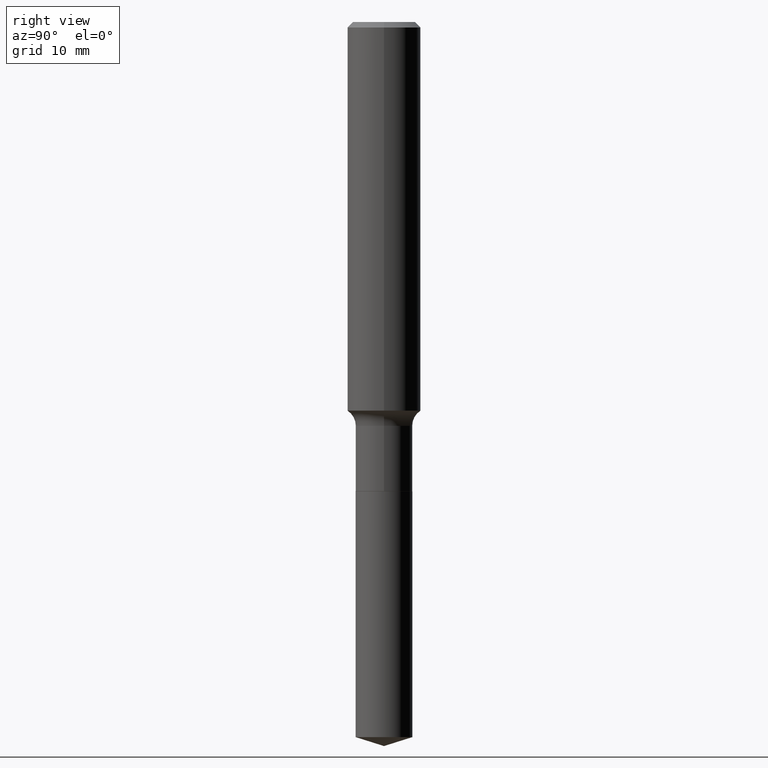
[diagram: clean part render]
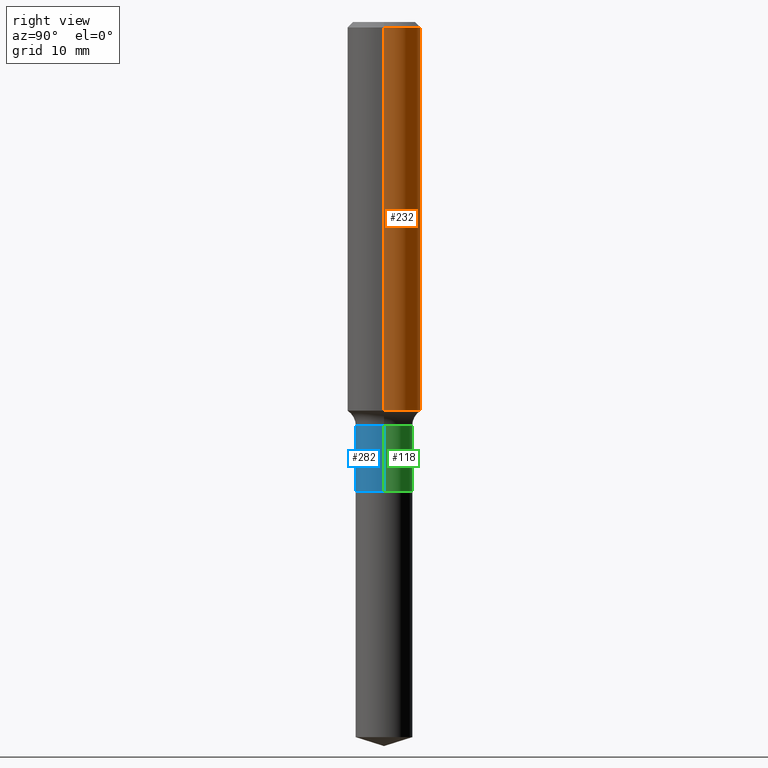
[diagram: same view with three faces highlighted in distinct colors, each labeled with its STEP entity id]
A machine part, right view with three faces highlighted in distinct colors.
Their STEP definitions:

[orange] entity #232 — the highlighted cylindrical surface (partial cylindrical patch) has radius 4.0005 mm, axis along (-0, 0, 1).
#6 = ORIENTED_EDGE ( 'NONE', *, *, #69, .F. ) ;
#7 = DIRECTION ( 'NONE',  ( 1.000000000000000000, -6.982962677686265922E-15, 0.000000000000000000 ) ) ;
#24 = CARTESIAN_POINT ( 'NONE',  ( 5.777420054612421980E-31, -8.248624663016985234E-17, -0.02362500000000015282 ) ) ;
#31 = AXIS2_PLACEMENT_3D ( 'NONE', #358, #412, #7 ) ;
#38 = CARTESIAN_POINT ( 'NONE',  ( 0.1575000000000000011, -1.182302868365756679E-15, -0.02362500000000015282 ) ) ;
#39 = EDGE_CURVE ( 'NONE', #399, #292, #101, .T. ) ;
#55 = VERTEX_POINT ( 'NONE', #405 ) ;
#61 = FACE_OUTER_BOUND ( 'NONE', #250, .T. ) ;
#69 = EDGE_CURVE ( 'NONE', #292, #423, #102, .T. ) ;
#75 = AXIS2_PLACEMENT_3D ( 'NONE', #270, #154, #451 ) ;
#101 = LINE ( 'NONE', #249, #410 ) ;
#102 = CIRCLE ( 'NONE', #383, 0.1575000000000000011 ) ;
#110 = CIRCLE ( 'NONE', #31, 0.1575000000000001954 ) ;
#154 = DIRECTION ( 'NONE',  ( -2.445468806185136597E-29, 3.491481338843145583E-15, 1.000000000000000000 ) ) ;
#204 = ORIENTED_EDGE ( 'NONE', *, *, #39, .F. ) ;
#211 = ORIENTED_EDGE ( 'NONE', *, *, #449, .T. ) ;
#232 = ADVANCED_FACE ( 'NONE', ( #61 ), #304, .T. ) ;
#233 = DIRECTION ( 'NONE',  ( -2.445468806185136877E-29, 3.491481338843145188E-15, 1.000000000000000000 ) ) ;
#249 = CARTESIAN_POINT ( 'NONE',  ( 0.1575000000000000844, -1.099816621735587677E-15, 7.679978421878603638E-30 ) ) ;
#250 = EDGE_LOOP ( 'NONE', ( #211, #299, #6, #204 ) ) ;
#258 = DIRECTION ( 'NONE',  ( -2.445468806185136597E-29, 3.491481338843145583E-15, 1.000000000000000000 ) ) ;
#270 = CARTESIAN_POINT ( 'NONE',  ( 0.000000000000000000, 0.000000000000000000, 0.000000000000000000 ) ) ;
#276 = LINE ( 'NONE', #454, #453 ) ;
#286 = EDGE_CURVE ( 'NONE', #55, #423, #276, .T. ) ;
#292 = VERTEX_POINT ( 'NONE', #38 ) ;
#299 = ORIENTED_EDGE ( 'NONE', *, *, #286, .T. ) ;
#304 = CYLINDRICAL_SURFACE ( 'NONE', #75, 0.1575000000000000844 ) ;
#313 = CARTESIAN_POINT ( 'NONE',  ( -0.1575000000000000011, -1.836875828701412226E-15, -0.02362500000000015282 ) ) ;
#339 = DIRECTION ( 'NONE',  ( 1.000000000000000000, -6.982962677686265922E-15, 0.000000000000000000 ) ) ;
#358 = CARTESIAN_POINT ( 'NONE',  ( 4.083023208467837425E-29, -5.829475028416973418E-15, -1.669628006761304961 ) ) ;
#383 = AXIS2_PLACEMENT_3D ( 'NONE', #24, #258, #339 ) ;
#396 = DIRECTION ( 'NONE',  ( -2.445468806185136877E-29, 3.491481338843145188E-15, 1.000000000000000000 ) ) ;
#399 = VERTEX_POINT ( 'NONE', #483 ) ;
#405 = CARTESIAN_POINT ( 'NONE',  ( -0.1575000000000002232, -4.710370219594814237E-15, -1.669628006761304961 ) ) ;
#410 = VECTOR ( 'NONE', #396, 39.37007874015748143 ) ;
#412 = DIRECTION ( 'NONE',  ( -2.445468806185136597E-29, 3.491481338843145583E-15, 1.000000000000000000 ) ) ;
#423 = VERTEX_POINT ( 'NONE', #313 ) ;
#449 = EDGE_CURVE ( 'NONE', #399, #55, #110, .T. ) ;
#451 = DIRECTION ( 'NONE',  ( 1.000000000000000000, -6.982962677686267499E-15, 4.876176775795936353E-29 ) ) ;
#453 = VECTOR ( 'NONE', #233, 39.37007874015748143 ) ;
#454 = CARTESIAN_POINT ( 'NONE',  ( -0.1575000000000000844, 1.119104808822158392E-15, -7.747322767151481189E-30 ) ) ;
#483 = CARTESIAN_POINT ( 'NONE',  ( 0.1575000000000002232, -6.929291650152562476E-15, -1.669628006761304961 ) ) ;

[blue] entity #282 — the highlighted cylindrical surface (edge-blend (fillet) strip) has radius 3.1001 mm, axis along (-0, 0, 1).
#5 = EDGE_CURVE ( 'NONE', #138, #92, #210, .T. ) ;
#12 = ORIENTED_EDGE ( 'NONE', *, *, #340, .F. ) ;
#34 = CYLINDRICAL_SURFACE ( 'NONE', #479, 0.1220499999999999641 ) ;
#64 = DIRECTION ( 'NONE',  ( 1.000000000000000000, -6.982962677686265922E-15, 0.000000000000000000 ) ) ;
#92 = VERTEX_POINT ( 'NONE', #476 ) ;
#103 = AXIS2_PLACEMENT_3D ( 'NONE', #360, #201, #463 ) ;
#115 = CARTESIAN_POINT ( 'NONE',  ( 0.1220499999999999641, -6.909990717704466794E-15, -1.735000000000000098 ) ) ;
#134 = CIRCLE ( 'NONE', #103, 0.1220499999999999780 ) ;
#138 = VERTEX_POINT ( 'NONE', #271 ) ;
#142 = VECTOR ( 'NONE', #175, 39.37007874015748143 ) ;
#175 = DIRECTION ( 'NONE',  ( -2.445468806185136877E-29, 3.491481338843145188E-15, 1.000000000000000000 ) ) ;
#187 = DIRECTION ( 'NONE',  ( -2.445468806185136877E-29, 3.491481338843145188E-15, 1.000000000000000000 ) ) ;
#188 = EDGE_CURVE ( 'NONE', #138, #289, #134, .T. ) ;
#201 = DIRECTION ( 'NONE',  ( -2.445468806185136597E-29, 3.491481338843145583E-15, 1.000000000000000000 ) ) ;
#210 = LINE ( 'NONE', #338, #142 ) ;
#229 = DIRECTION ( 'NONE',  ( 1.000000000000000000, -6.982962677686266711E-15, 4.876176775795935793E-29 ) ) ;
#235 = AXIS2_PLACEMENT_3D ( 'NONE', #238, #474, #64 ) ;
#238 = CARTESIAN_POINT ( 'NONE',  ( 4.242888378731212847E-29, -6.057720122892857986E-15, -1.735000000000000098 ) ) ;
#248 = ORIENTED_EDGE ( 'NONE', *, *, #316, .T. ) ;
#253 = VERTEX_POINT ( 'NONE', #115 ) ;
#271 = CARTESIAN_POINT ( 'NONE',  ( -0.1220500000000000057, -5.679659249469580789E-15, -2.015200000000000102 ) ) ;
#273 = CIRCLE ( 'NONE', #235, 0.1220499999999999641 ) ;
#282 = ADVANCED_FACE ( 'NONE', ( #320 ), #34, .T. ) ;
#289 = VERTEX_POINT ( 'NONE', #492 ) ;
#300 = ORIENTED_EDGE ( 'NONE', *, *, #188, .T. ) ;
#316 = EDGE_CURVE ( 'NONE', #289, #253, #447, .T. ) ;
#317 = CARTESIAN_POINT ( 'NONE',  ( 0.1220499999999999641, -8.522705948116086106E-16, 5.951373754858937892E-30 ) ) ;
#320 = FACE_OUTER_BOUND ( 'NONE', #334, .T. ) ;
#325 = VECTOR ( 'NONE', #187, 39.37007874015748143 ) ;
#334 = EDGE_LOOP ( 'NONE', ( #481, #300, #248, #12 ) ) ;
#338 = CARTESIAN_POINT ( 'NONE',  ( -0.1220499999999999641, 8.672174089952020216E-16, -6.003560277656110794E-30 ) ) ;
#340 = EDGE_CURVE ( 'NONE', #92, #253, #273, .T. ) ;
#345 = DIRECTION ( 'NONE',  ( -2.445468806185136597E-29, 3.491481338843145583E-15, 1.000000000000000000 ) ) ;
#360 = CARTESIAN_POINT ( 'NONE',  ( 4.928108738224288081E-29, -7.036033194036707240E-15, -2.015200000000000102 ) ) ;
#419 = CARTESIAN_POINT ( 'NONE',  ( 0.000000000000000000, 0.000000000000000000, 0.000000000000000000 ) ) ;
#447 = LINE ( 'NONE', #317, #325 ) ;
#463 = DIRECTION ( 'NONE',  ( 1.000000000000000000, -6.982962677686265133E-15, 0.000000000000000000 ) ) ;
#474 = DIRECTION ( 'NONE',  ( -2.445468806185136597E-29, 3.491481338843145583E-15, 1.000000000000000000 ) ) ;
#476 = CARTESIAN_POINT ( 'NONE',  ( -0.1220499999999999641, -5.679659249469580789E-15, -1.735000000000000098 ) ) ;
#479 = AXIS2_PLACEMENT_3D ( 'NONE', #419, #345, #229 ) ;
#481 = ORIENTED_EDGE ( 'NONE', *, *, #5, .F. ) ;
#492 = CARTESIAN_POINT ( 'NONE',  ( 0.1220499999999999780, -7.888303788848316048E-15, -2.015200000000000102 ) ) ;

[green] entity #118 — the highlighted cylindrical surface (edge-blend (fillet) strip) has radius 3.1001 mm, axis along (-0, 0, 1).
#1 = CIRCLE ( 'NONE', #301, 0.1220499999999999641 ) ;
#5 = EDGE_CURVE ( 'NONE', #138, #92, #210, .T. ) ;
#15 = CYLINDRICAL_SURFACE ( 'NONE', #74, 0.1220499999999999641 ) ;
#20 = CARTESIAN_POINT ( 'NONE',  ( 0.000000000000000000, 0.000000000000000000, 0.000000000000000000 ) ) ;
#36 = DIRECTION ( 'NONE',  ( 1.000000000000000000, -6.982962677686265133E-15, 0.000000000000000000 ) ) ;
#66 = DIRECTION ( 'NONE',  ( -2.445468806185136597E-29, 3.491481338843145583E-15, 1.000000000000000000 ) ) ;
#67 = FACE_OUTER_BOUND ( 'NONE', #91, .T. ) ;
#74 = AXIS2_PLACEMENT_3D ( 'NONE', #20, #256, #264 ) ;
#86 = ORIENTED_EDGE ( 'NONE', *, *, #389, .F. ) ;
#91 = EDGE_LOOP ( 'NONE', ( #140, #170, #86, #244 ) ) ;
#92 = VERTEX_POINT ( 'NONE', #476 ) ;
#115 = CARTESIAN_POINT ( 'NONE',  ( 0.1220499999999999641, -6.909990717704466794E-15, -1.735000000000000098 ) ) ;
#118 = ADVANCED_FACE ( 'NONE', ( #67 ), #15, .T. ) ;
#138 = VERTEX_POINT ( 'NONE', #271 ) ;
#140 = ORIENTED_EDGE ( 'NONE', *, *, #236, .T. ) ;
#142 = VECTOR ( 'NONE', #175, 39.37007874015748143 ) ;
#152 = AXIS2_PLACEMENT_3D ( 'NONE', #310, #382, #36 ) ;
#170 = ORIENTED_EDGE ( 'NONE', *, *, #5, .T. ) ;
#175 = DIRECTION ( 'NONE',  ( -2.445468806185136877E-29, 3.491481338843145188E-15, 1.000000000000000000 ) ) ;
#181 = DIRECTION ( 'NONE',  ( 1.000000000000000000, -6.982962677686265922E-15, 0.000000000000000000 ) ) ;
#187 = DIRECTION ( 'NONE',  ( -2.445468806185136877E-29, 3.491481338843145188E-15, 1.000000000000000000 ) ) ;
#210 = LINE ( 'NONE', #338, #142 ) ;
#236 = EDGE_CURVE ( 'NONE', #289, #138, #446, .T. ) ;
#244 = ORIENTED_EDGE ( 'NONE', *, *, #316, .F. ) ;
#253 = VERTEX_POINT ( 'NONE', #115 ) ;
#256 = DIRECTION ( 'NONE',  ( -2.445468806185136597E-29, 3.491481338843145583E-15, 1.000000000000000000 ) ) ;
#257 = CARTESIAN_POINT ( 'NONE',  ( 4.242888378731212847E-29, -6.057720122892857986E-15, -1.735000000000000098 ) ) ;
#264 = DIRECTION ( 'NONE',  ( 1.000000000000000000, -6.982962677686266711E-15, 4.876176775795935793E-29 ) ) ;
#271 = CARTESIAN_POINT ( 'NONE',  ( -0.1220500000000000057, -5.679659249469580789E-15, -2.015200000000000102 ) ) ;
#289 = VERTEX_POINT ( 'NONE', #492 ) ;
#301 = AXIS2_PLACEMENT_3D ( 'NONE', #257, #66, #181 ) ;
#310 = CARTESIAN_POINT ( 'NONE',  ( 4.928108738224288081E-29, -7.036033194036707240E-15, -2.015200000000000102 ) ) ;
#316 = EDGE_CURVE ( 'NONE', #289, #253, #447, .T. ) ;
#317 = CARTESIAN_POINT ( 'NONE',  ( 0.1220499999999999641, -8.522705948116086106E-16, 5.951373754858937892E-30 ) ) ;
#325 = VECTOR ( 'NONE', #187, 39.37007874015748143 ) ;
#338 = CARTESIAN_POINT ( 'NONE',  ( -0.1220499999999999641, 8.672174089952020216E-16, -6.003560277656110794E-30 ) ) ;
#382 = DIRECTION ( 'NONE',  ( -2.445468806185136597E-29, 3.491481338843145583E-15, 1.000000000000000000 ) ) ;
#389 = EDGE_CURVE ( 'NONE', #253, #92, #1, .T. ) ;
#446 = CIRCLE ( 'NONE', #152, 0.1220499999999999780 ) ;
#447 = LINE ( 'NONE', #317, #325 ) ;
#476 = CARTESIAN_POINT ( 'NONE',  ( -0.1220499999999999641, -5.679659249469580789E-15, -1.735000000000000098 ) ) ;
#492 = CARTESIAN_POINT ( 'NONE',  ( 0.1220499999999999780, -7.888303788848316048E-15, -2.015200000000000102 ) ) ;